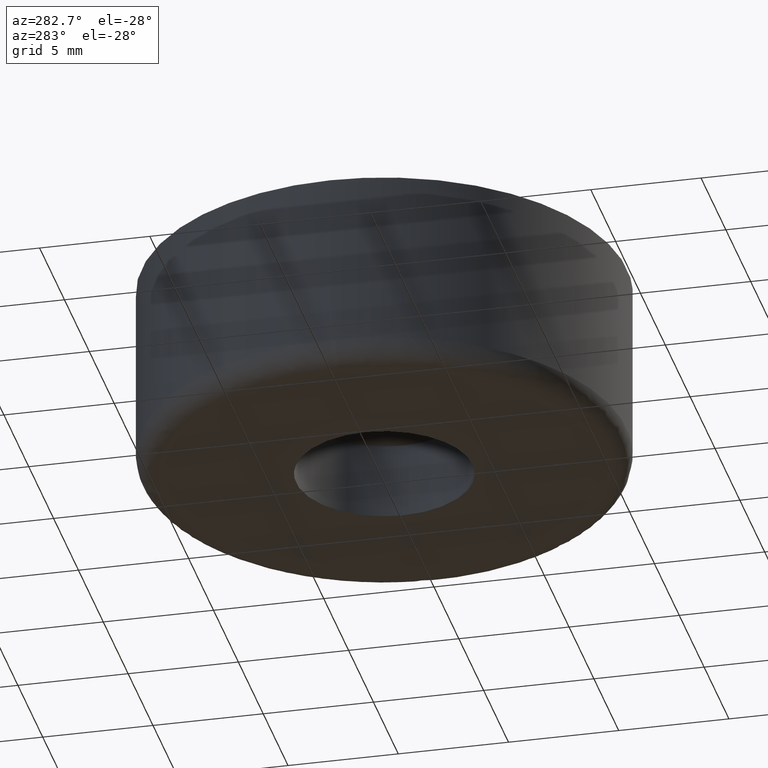
[diagram: clean part render]
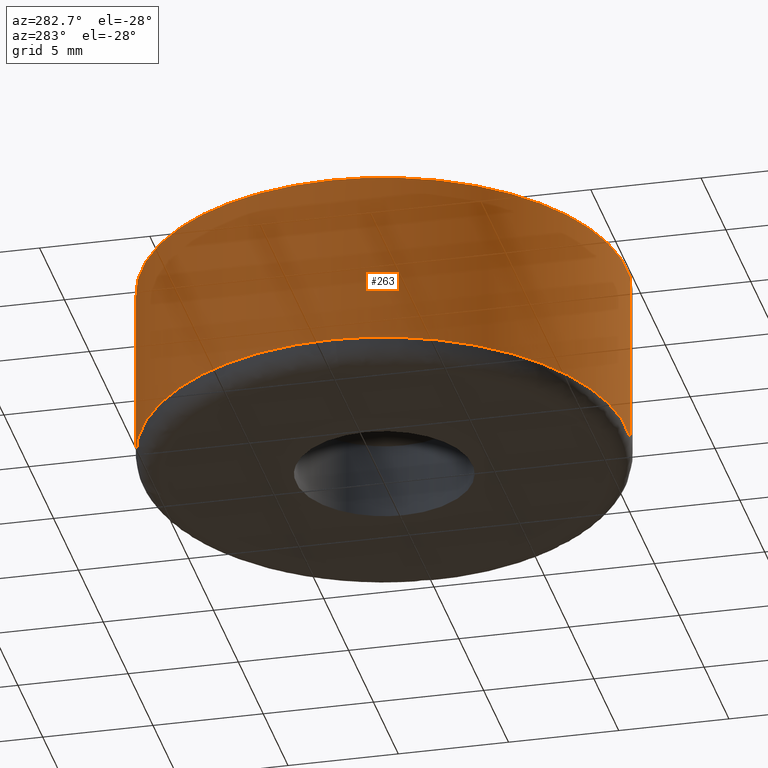
[diagram: same view with one face highlighted and labeled with its STEP entity id]
A machine part, auxiliary view. The second image highlights one B-rep face of the part: STEP entity #263.
In plain terms, the highlighted face is a freeform B-spline surface patch.
Its self-contained STEP definition (entity closure, byte-faithful):
#62=CARTESIAN_POINT('',(10.735658999564700,-2.397003513767527,0.999999999999981));
#63=VERTEX_POINT('',#62);
#64=CARTESIAN_POINT('',(0.863043667407032,-10.966091173618230,1.000000000000017));
#65=VERTEX_POINT('',#64);
#79=CARTESIAN_POINT('',(10.735658980247090,-2.397003600287159,8.999999999999901));
#80=VERTEX_POINT('',#79);
#81=CARTESIAN_POINT('',(10.735658980247090,-2.397003600287159,8.999999999999901));
#82=CARTESIAN_POINT('',(10.735658999564700,-2.397003513767527,0.999999999999981));
#83=QUASI_UNIFORM_CURVE('',1,(#81,#82),.UNSPECIFIED.,.F.,.U.);
#84=EDGE_CURVE('',#80,#63,#83,.T.);
#86=CARTESIAN_POINT('',(0.863043746158326,-10.966091167420460,8.999999999999901));
#87=VERTEX_POINT('',#86);
#101=CARTESIAN_POINT('',(0.863043746158326,-10.966091167420460,8.999999999999901));
#102=CARTESIAN_POINT('',(0.863043667407032,-10.966091173618230,1.000000000000017));
#103=QUASI_UNIFORM_CURVE('',1,(#101,#102),.UNSPECIFIED.,.F.,.U.);
#104=EDGE_CURVE('',#87,#65,#103,.T.);
#109=CARTESIAN_POINT('',(0.863050053006293,-10.966090671064400,9.200000000002463));
#110=CARTESIAN_POINT('',(-10.103040618058110,-11.829140724070699,9.200000000002463));
#111=CARTESIAN_POINT('',(-10.966090671064400,-0.863050053006293,9.200000000002463));
#112=CARTESIAN_POINT('',(-11.829140724070699,10.103040618058110,9.200000000002463));
#113=CARTESIAN_POINT('',(-0.863050053006293,10.966090671064400,9.200000000002463));
#114=CARTESIAN_POINT('',(10.103040618058110,11.829140724070699,9.200000000002463));
#115=CARTESIAN_POINT('',(10.966090671064400,0.863050053006293,9.200000000002463));
#116=CARTESIAN_POINT('',(11.095739003543983,-0.784288203182901,9.200000000002463));
#117=CARTESIAN_POINT('',(10.735657434362894,-2.397010523967008,9.200000000002461));
#118=CARTESIAN_POINT('',(0.863050053006293,-10.966090671064400,0.794999999894772));
#119=CARTESIAN_POINT('',(-10.103040618058110,-11.829140724070699,0.794999999894772));
#120=CARTESIAN_POINT('',(-10.966090671064400,-0.863050053006293,0.794999999894772));
#121=CARTESIAN_POINT('',(-11.829140724070699,10.103040618058110,0.794999999894772));
#122=CARTESIAN_POINT('',(-0.863050053006293,10.966090671064400,0.794999999894772));
#123=CARTESIAN_POINT('',(10.103040618058110,11.829140724070699,0.794999999894772));
#124=CARTESIAN_POINT('',(10.966090671064400,0.863050053006293,0.794999999894772));
#125=CARTESIAN_POINT('',(11.095739003543983,-0.784288203182901,0.794999999894772));
#126=CARTESIAN_POINT('',(10.735657434362894,-2.397010523967008,0.794999999894772));
#134=(BOUNDED_SURFACE()B_SPLINE_SURFACE(2,1,((#109,#118),(#110,#119),(#111,#120),(#112,#121),(#113,#122),(#114,#123),(#115,#124),(#116,#125),(#117,#126)),.UNSPECIFIED.,.F.,.F.,.U.)B_SPLINE_SURFACE_WITH_KNOTS((3,2,2,2,3),(2,2),(0.0,18.225396744416170,36.450793488832353,54.676190233248519,58.321269582131762),(0.0,8.405000000107691),.UNSPECIFIED.)GEOMETRIC_REPRESENTATION_ITEM()RATIONAL_B_SPLINE_SURFACE(((1.0,1.0),(0.707106781186548,0.707106781186548),(1.0,1.0),(0.707106781186548,0.707106781186548),(1.0,1.0),(0.707106781186548,0.707106781186548),(1.0,1.0),(0.941421356237310,0.941421356237310),(0.906274169979695,0.906274169979695)))REPRESENTATION_ITEM('')SURFACE());
#135=CARTESIAN_POINT('',(11.0,0.0,1.0));
#136=VERTEX_POINT('',#135);
#137=CARTESIAN_POINT('',(11.0,0.0,1.0));
#138=CARTESIAN_POINT('',(11.000000000000005,-1.213077489482777,1.0));
#139=CARTESIAN_POINT('',(10.735658999564697,-2.397003513767527,0.999999999999981));
#147=(BOUNDED_CURVE()B_SPLINE_CURVE(2,(#137,#138,#139),.UNSPECIFIED.,.F.,.U.)B_SPLINE_CURVE_WITH_KNOTS((3,3),(0.500000000000000,0.537286560370751),.UNSPECIFIED.)CURVE()GEOMETRIC_REPRESENTATION_ITEM()RATIONAL_B_SPLINE_CURVE((1.0,0.956316077258115,0.925662740296602))REPRESENTATION_ITEM(''));
#148=EDGE_CURVE('',#136,#63,#147,.T.);
#149=ORIENTED_EDGE('',*,*,#148,.F.);
#150=CARTESIAN_POINT('',(-0.276431049877462,10.996526082116279,0.999999999897399));
#151=VERTEX_POINT('',#150);
#152=CARTESIAN_POINT('',(-0.276431049877462,10.996526082116279,0.999999999897399));
#153=CARTESIAN_POINT('',(-0.138237353357926,11.000000000000004,1.0));
#154=CARTESIAN_POINT('',(0.0,11.0,1.0));
#155=CARTESIAN_POINT('',(11.0,11.0,1.0));
#156=CARTESIAN_POINT('',(11.0,0.0,1.0));
#164=(BOUNDED_CURVE()B_SPLINE_CURVE(2,(#152,#153,#154,#155,#156),.UNSPECIFIED.,.F.,.U.)B_SPLINE_CURVE_WITH_KNOTS((3,2,3),(0.245579891769784,0.250000000000000,0.500000000000000),.UNSPECIFIED.)CURVE()GEOMETRIC_REPRESENTATION_ITEM()RATIONAL_B_SPLINE_CURVE((0.989826157681522,0.994821521091792,1.0,0.707106781186548,1.0))REPRESENTATION_ITEM(''));
#165=EDGE_CURVE('',#151,#136,#164,.T.);
#166=ORIENTED_EDGE('',*,*,#165,.F.);
#167=CARTESIAN_POINT('',(-11.0,0.0,1.0));
#168=VERTEX_POINT('',#167);
#169=CARTESIAN_POINT('',(-11.0,0.0,1.0));
#170=CARTESIAN_POINT('',(-11.0,10.726956637985680,1.0));
#171=CARTESIAN_POINT('',(-0.276431049877462,10.996526082116279,0.999999999897399));
#179=(BOUNDED_CURVE()B_SPLINE_CURVE(2,(#169,#170,#171),.UNSPECIFIED.,.F.,.U.)B_SPLINE_CURVE_WITH_KNOTS((3,3),(0.0,0.245579891769784),.UNSPECIFIED.)CURVE()GEOMETRIC_REPRESENTATION_ITEM()RATIONAL_B_SPLINE_CURVE((1.0,0.712285260094755,0.989826157681522))REPRESENTATION_ITEM(''));
#180=EDGE_CURVE('',#168,#151,#179,.T.);
#181=ORIENTED_EDGE('',*,*,#180,.F.);
#182=CARTESIAN_POINT('',(-10.996526082116279,-0.276431049877210,0.999999999897420));
#183=VERTEX_POINT('',#182);
#184=CARTESIAN_POINT('',(-10.996526082116281,-0.276431049877210,0.999999999897420));
#185=CARTESIAN_POINT('',(-11.0,-0.138237353357674,1.0));
#186=CARTESIAN_POINT('',(-11.0,0.0,1.0));
#194=(BOUNDED_CURVE()B_SPLINE_CURVE(2,(#184,#185,#186),.UNSPECIFIED.,.F.,.U.)B_SPLINE_CURVE_WITH_KNOTS((3,3),(0.995579891769792,1.0),.UNSPECIFIED.)CURVE()GEOMETRIC_REPRESENTATION_ITEM()RATIONAL_B_SPLINE_CURVE((0.989826157681540,0.994821521091802,1.0))REPRESENTATION_ITEM(''));
#195=EDGE_CURVE('',#183,#168,#194,.T.);
#196=ORIENTED_EDGE('',*,*,#195,.F.);
#197=CARTESIAN_POINT('',(0.863043667407032,-10.966091173618224,1.000000000000017));
#198=CARTESIAN_POINT('',(0.432187969468142,-11.000000000000002,1.0));
#199=CARTESIAN_POINT('',(0.0,-11.0,1.0));
#200=CARTESIAN_POINT('',(-10.726956637986108,-11.000000000000004,1.0));
#201=CARTESIAN_POINT('',(-10.996526082116283,-0.276431049877210,0.999999999897420));
#209=(BOUNDED_CURVE()B_SPLINE_CURVE(2,(#197,#198,#199,#200,#201),.UNSPECIFIED.,.F.,.U.)B_SPLINE_CURVE_WITH_KNOTS((3,2,3),(0.736331400453952,0.750000000000000,0.995579891769791),.UNSPECIFIED.)CURVE()GEOMETRIC_REPRESENTATION_ITEM()RATIONAL_B_SPLINE_CURVE((0.969723564491107,0.983986239529144,1.0,0.712285260094747,0.989826157681538))REPRESENTATION_ITEM(''));
#210=EDGE_CURVE('',#65,#183,#209,.T.);
#211=ORIENTED_EDGE('',*,*,#210,.F.);
#212=ORIENTED_EDGE('',*,*,#104,.F.);
#213=CARTESIAN_POINT('',(-11.0,0.0,8.999999999999901));
#214=VERTEX_POINT('',#213);
#215=CARTESIAN_POINT('',(0.863043746158326,-10.966091167420460,8.999999999999901));
#216=CARTESIAN_POINT('',(0.432188009026516,-10.999999999999996,8.999999999999901));
#217=CARTESIAN_POINT('',(0.0,-11.0,8.999999999999901));
#218=CARTESIAN_POINT('',(-11.0,-11.0,8.999999999999901));
#219=CARTESIAN_POINT('',(-11.0,0.0,8.999999999999901));
#227=(BOUNDED_CURVE()B_SPLINE_CURVE(2,(#215,#216,#217,#218,#219),.UNSPECIFIED.,.F.,.U.)B_SPLINE_CURVE_WITH_KNOTS((3,2,3),(0.736331399222893,0.750000000000000,1.0),.UNSPECIFIED.)CURVE()GEOMETRIC_REPRESENTATION_ITEM()RATIONAL_B_SPLINE_CURVE((0.969723561921979,0.983986238086868,1.0,0.707106781186548,1.0))REPRESENTATION_ITEM(''));
#228=EDGE_CURVE('',#87,#214,#227,.T.);
#229=ORIENTED_EDGE('',*,*,#228,.T.);
#230=CARTESIAN_POINT('',(11.0,0.0,8.999999999999901));
#231=VERTEX_POINT('',#230);
#232=CARTESIAN_POINT('',(-11.0,0.0,8.999999999999901));
#233=CARTESIAN_POINT('',(-11.0,11.0,8.999999999999901));
#234=CARTESIAN_POINT('',(0.0,11.0,8.999999999999901));
#235=CARTESIAN_POINT('',(11.0,11.0,8.999999999999901));
#236=CARTESIAN_POINT('',(11.0,0.0,8.999999999999901));
#244=(BOUNDED_CURVE()B_SPLINE_CURVE(2,(#232,#233,#234,#235,#236),.UNSPECIFIED.,.F.,.U.)B_SPLINE_CURVE_WITH_KNOTS((3,2,3),(0.0,0.250000000000000,0.500000000000000),.UNSPECIFIED.)CURVE()GEOMETRIC_REPRESENTATION_ITEM()RATIONAL_B_SPLINE_CURVE((1.0,0.707106781186548,1.0,0.707106781186548,1.0))REPRESENTATION_ITEM(''));
#245=EDGE_CURVE('',#214,#231,#244,.T.);
#246=ORIENTED_EDGE('',*,*,#245,.T.);
#247=CARTESIAN_POINT('',(11.0,0.0,8.999999999999901));
#248=CARTESIAN_POINT('',(11.000000000000002,-1.213077534346824,8.999999999999901));
#249=CARTESIAN_POINT('',(10.735658980247091,-2.397003600287159,8.999999999999901));
#257=(BOUNDED_CURVE()B_SPLINE_CURVE(2,(#247,#248,#249),.UNSPECIFIED.,.F.,.U.)B_SPLINE_CURVE_WITH_KNOTS((3,3),(0.500000000000000,0.537286561689504),.UNSPECIFIED.)CURVE()GEOMETRIC_REPRESENTATION_ITEM()RATIONAL_B_SPLINE_CURVE((1.0,0.956316075713099,0.925662738128303))REPRESENTATION_ITEM(''));
#258=EDGE_CURVE('',#231,#80,#257,.T.);
#259=ORIENTED_EDGE('',*,*,#258,.T.);
#260=ORIENTED_EDGE('',*,*,#84,.T.);
#261=EDGE_LOOP('',(#149,#166,#181,#196,#211,#212,#229,#246,#259,#260));
#262=FACE_OUTER_BOUND('',#261,.T.);
#263=ADVANCED_FACE('',(#262),#134,.T.);